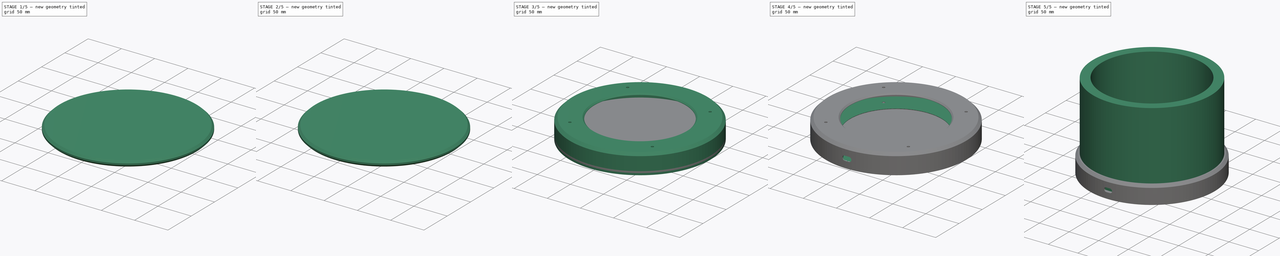
[diagram: build sequence overview — one tinted view per stage of 5, left to right]
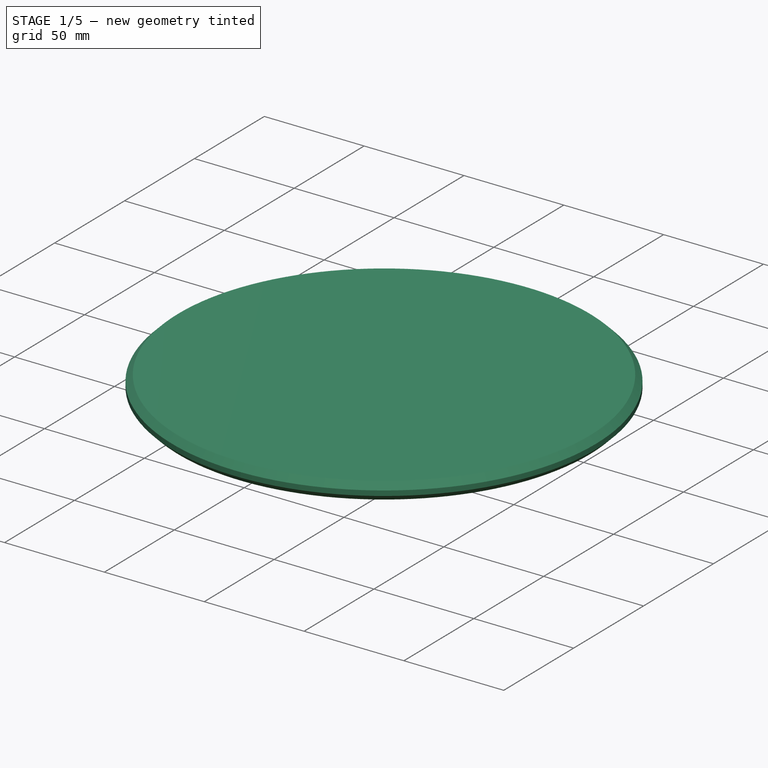
[diagram: stage 1 of 5 — iso view after this stage's code; geometry added in this stage tinted green]
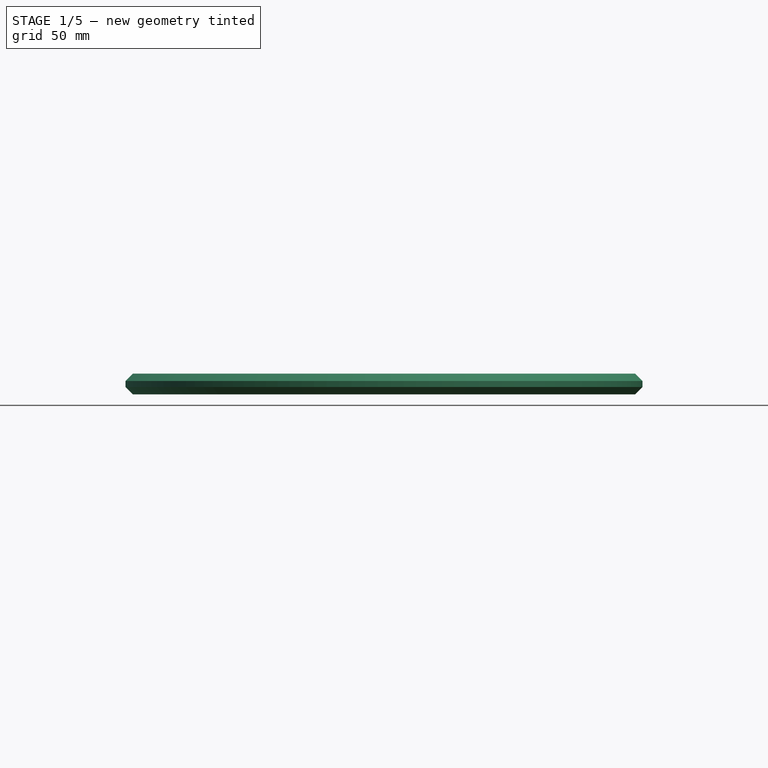
[diagram: stage 1 of 5 — front view after this stage's code; geometry added in this stage tinted green]
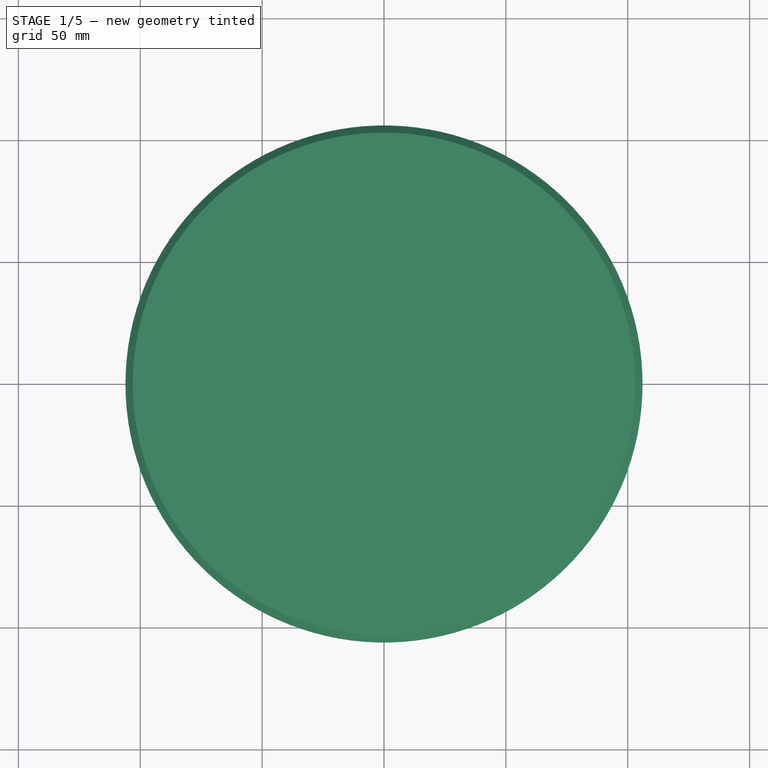
[diagram: stage 1 of 5 — top view after this stage's code; geometry added in this stage tinted green]
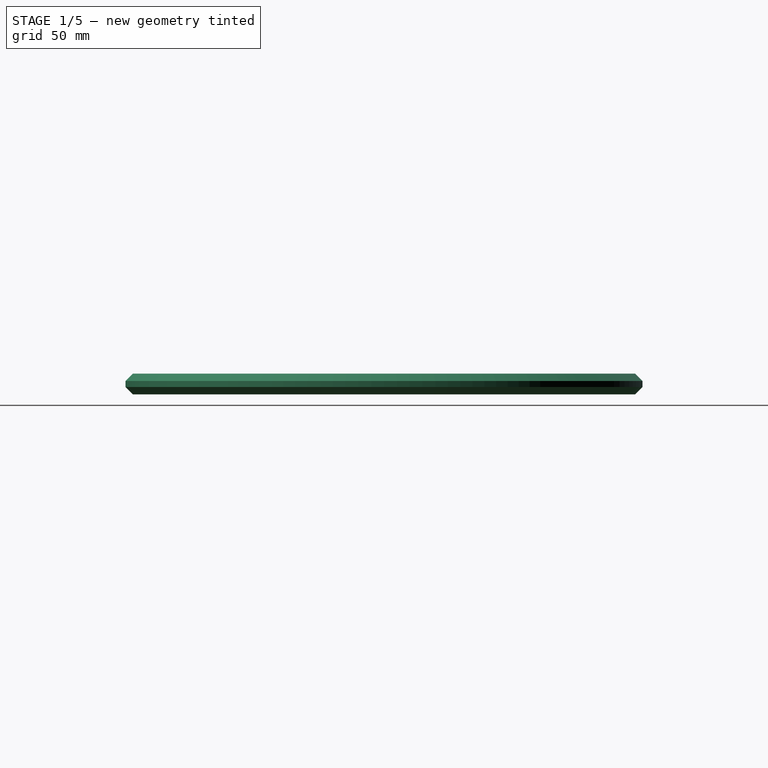
[diagram: stage 1 of 5 — right view after this stage's code; geometry added in this stage tinted green]
FCSTD DOCUMENT  (FreeCAD 0.18R4 (GitTag))
Label: AirPurifier
License: All rights reserved
LicenseURL: http://en.wikipedia.org/wiki/All_rights_reserved
objects: Sketcher::SketchObject×13, PartDesign::Chamfer×10, PartDesign::Pad×7, PartDesign::Pocket×6, PartDesign::Body×5, PartDesign::Fillet×2
note: 56 computed .brp shape members not serialized (recipe doc carries the construction recipe); baked Part::Feature solids carry a one-line shape summary decoded from their .brp

FEATURE [Sketcher::SketchObject] Sketch019
  MapMode = 5
  Support = -> [XY_Plane008]
  sketch-geometry (1):
    g0: Circle CenterX=0 CenterY=0 CenterZ=0 NormalX=0 NormalY=0 NormalZ=1 AngleXU=0 Radius=106.07
  constraints (2):
    c: Coincident(g0,g-1)
    c: Radius(g0) = 106.07
FEATURE [PartDesign::Pad] Pad010
  Length = 8.5
  Length2 = 100
  Profile = -> Sketch019
  Type = 0
FEATURE [Sketcher::SketchObject] Sketch020
  MapMode = 5
  Support = -> [XY_Plane008]
  sketch-geometry (1):
    g0: Circle CenterX=0 CenterY=0 CenterZ=0 NormalX=0 NormalY=0 NormalZ=1 AngleXU=0 Radius=100
  constraints (2):
    c: Coincident(g0,g-1)
    c: Radius(g0) = 100
FEATURE [PartDesign::Pocket] Pocket001
  BaseFeature = -> Pad010
  Length = 7
  Length2 = 100
  Profile = -> Sketch020
  Reversed = true
  Type = 0
FEATURE [PartDesign::Chamfer] Chamfer008
  Base = -> Pocket001 [Edge3]
  BaseFeature = -> Pocket001
  Size = 3
FEATURE [PartDesign::Body] Body  label="Fan_cover"
  Group = -> [Sketch,Pad,Sketch023,Pocket,Chamfer,Chamfer011,Chamfer014,Sketch027,Pocket005]
  Origin = -> Origin
  Placement = pos=(0,0,79.5) rot=(0,0,1;0rad)
  Tip = -> Pocket005
FEATURE [PartDesign::Chamfer] Chamfer015
  Base = -> Chamfer008 [Edge3]
  BaseFeature = -> Chamfer008
  Size = 3
FEATURE [Sketcher::SketchObject] Sketch028
  MapMode = 5
  Support = -> [XY_Plane008]
  sketch-geometry (2):
    g0: Circle CenterX=0 CenterY=0 CenterZ=0 NormalX=0 NormalY=0 NormalZ=1 AngleXU=0 Radius=80
    g1: Circle CenterX=0 CenterY=0 CenterZ=0 NormalX=0 NormalY=0 NormalZ=1 AngleXU=0 Radius=79
  constraints (4):
    c: Coincident(g0,g-1)
    c: Radius(g0) = 80
    c: Coincident(g1,g0)
    c: Radius(g1) = 79
FEATURE [PartDesign::Pad] Pad012
  BaseFeature = -> Chamfer015
  Length = 8
  Length2 = 100
  Profile = -> Sketch028
  Type = 0
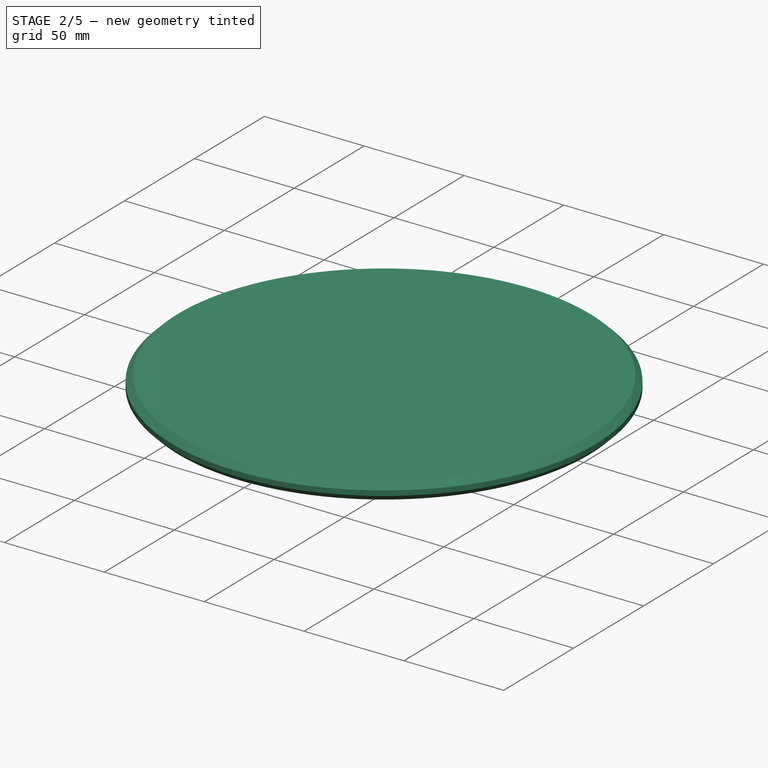
[diagram: stage 2 of 5 — iso view after this stage's code; geometry added in this stage tinted green]
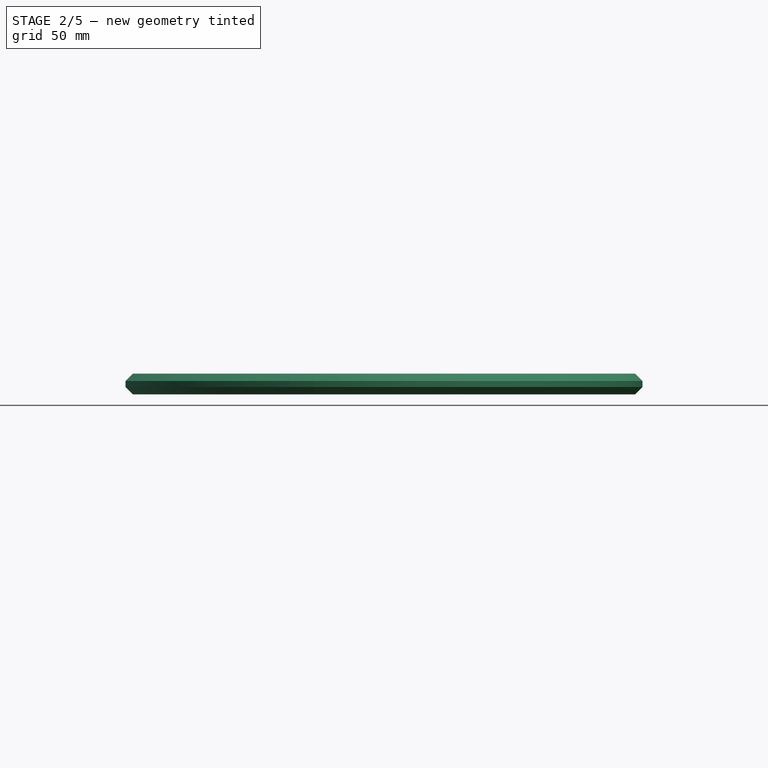
[diagram: stage 2 of 5 — front view after this stage's code; geometry added in this stage tinted green]
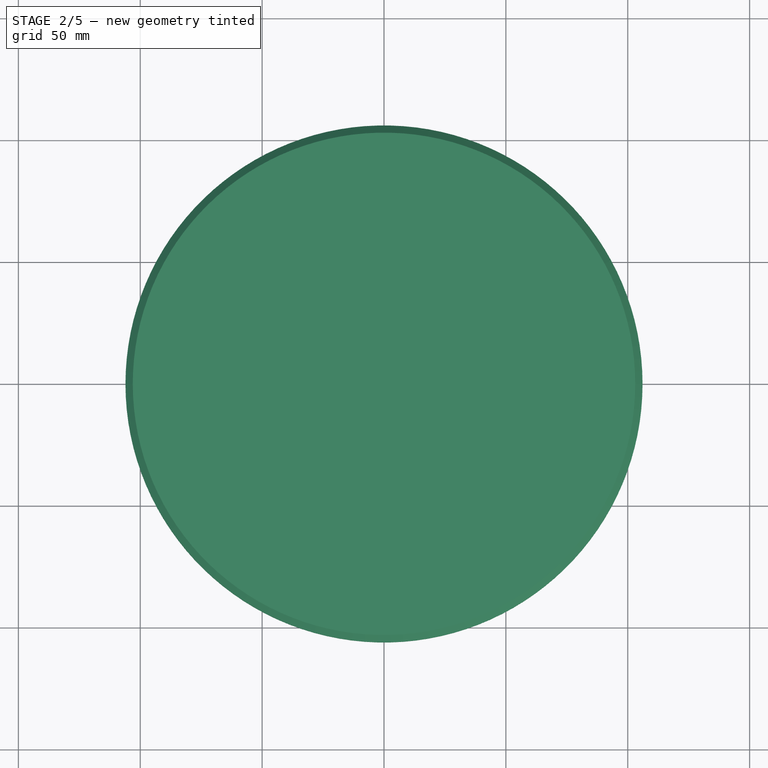
[diagram: stage 2 of 5 — top view after this stage's code; geometry added in this stage tinted green]
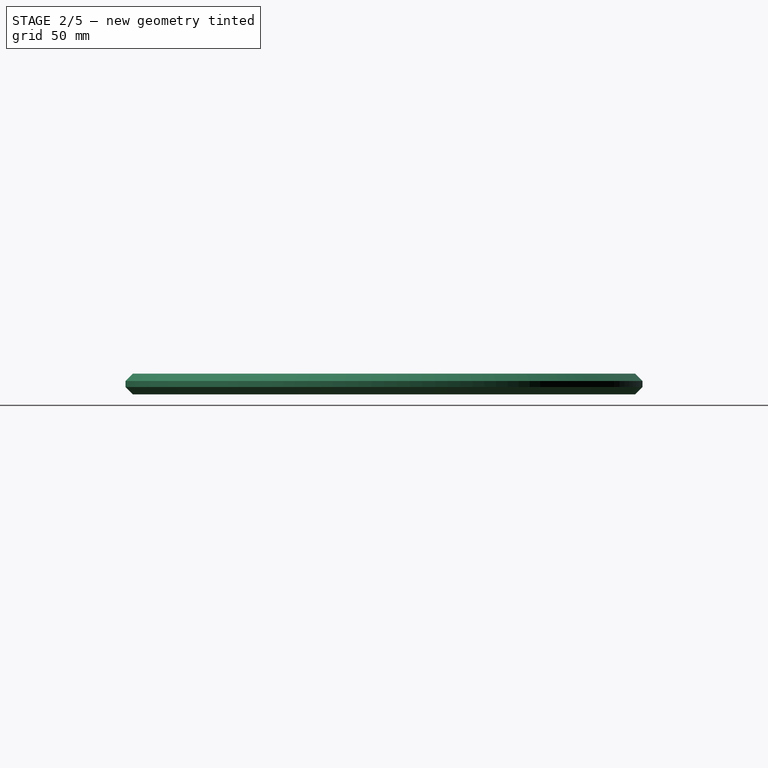
[diagram: stage 2 of 5 — right view after this stage's code; geometry added in this stage tinted green]
FEATURE [Sketcher::SketchObject] Sketch029
  MapMode = 5
  Placement = pos=(0,0,0) rot=(1,0,0;1.5708rad)
  Support = -> [XZ_Plane008]
  sketch-geometry (1):
    g0: Circle CenterX=0 CenterY=4 CenterZ=0 NormalX=0 NormalY=0 NormalZ=1 AngleXU=0 Radius=1
  constraints (3):
    c: PointOnObject(g0,g-2)
    c: Radius(g0) = 1
    c: Distance(g0,g-1) = 4
FEATURE [PartDesign::Pocket] Pocket006
  BaseFeature = -> Pad012
  Length = 175
  Length2 = 100
  Midplane = true
  Profile = -> Sketch029
  Type = 0
FEATURE [Sketcher::SketchObject] Sketch030
  MapMode = 5
  Placement = pos=(0,0,0) rot=(0.57735,0.57735,0.57735;2.0944rad)
  Support = -> [YZ_Plane008]
  sketch-geometry (1):
    g0: Circle CenterX=0 CenterY=4 CenterZ=0 NormalX=0 NormalY=0 NormalZ=1 AngleXU=0 Radius=1
  constraints (3):
    c: PointOnObject(g0,g-2)
    c: Radius(g0) = 1
    c: Distance(g-1,g0) = 4
FEATURE [PartDesign::Pocket] Pocket007
  BaseFeature = -> Pocket006
  Length = 175
  Length2 = 100
  Midplane = true
  Profile = -> Sketch030
  Type = 0
FEATURE [PartDesign::Chamfer] Chamfer016
  Base = -> Pocket007 [Edge34]
  BaseFeature = -> Pocket007
  Size = 1
FEATURE [PartDesign::Chamfer] Chamfer017
  Base = -> Chamfer016 [Edge29]
  BaseFeature = -> Chamfer016
  Size = 0.8
FEATURE [PartDesign::Chamfer] Chamfer018
  Base = -> Chamfer017 [Edge8]
  BaseFeature = -> Chamfer017
  Size = 0.5
FEATURE [PartDesign::Body] Body008  label="Bottom"
  Group = -> [Sketch019,Pad010,Sketch020,Pocket001,Chamfer008,Chamfer015,Sketch028,Pad012,Sketch029,Pocket006,Sketch030,Pocket007,Chamfer016,Chamfer017,Chamfer018]
  Origin = -> Origin008
  Placement = pos=(0,0,-171) rot=(0,1,0;3.14159rad)
  Tip = -> Chamfer018
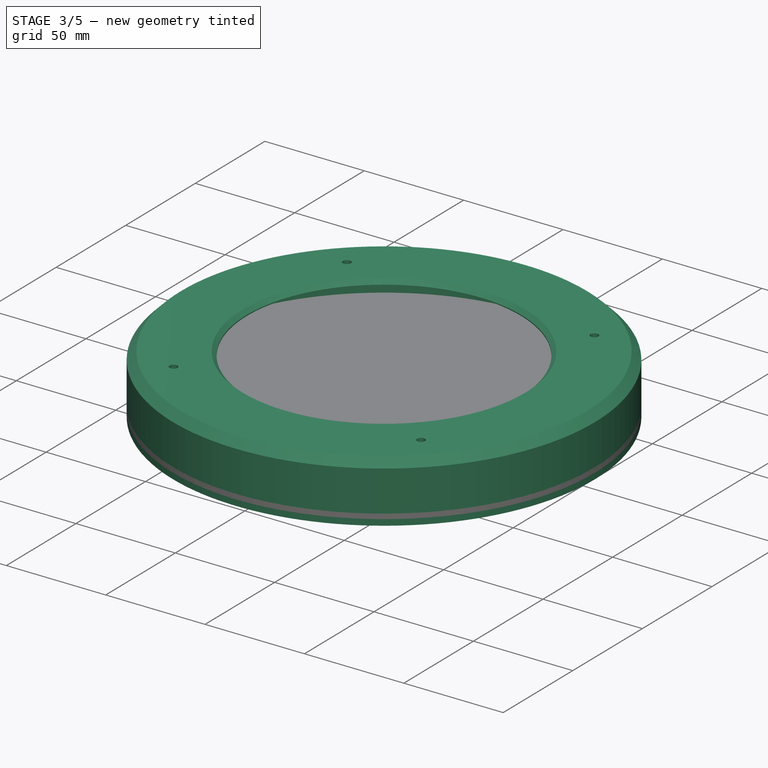
[diagram: stage 3 of 5 — iso view after this stage's code; geometry added in this stage tinted green]
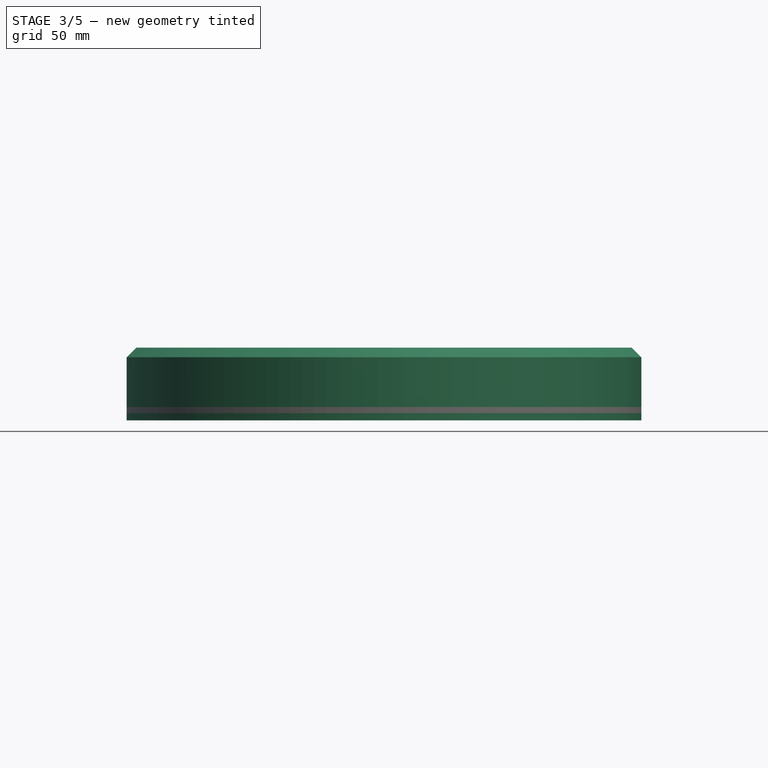
[diagram: stage 3 of 5 — front view after this stage's code; geometry added in this stage tinted green]
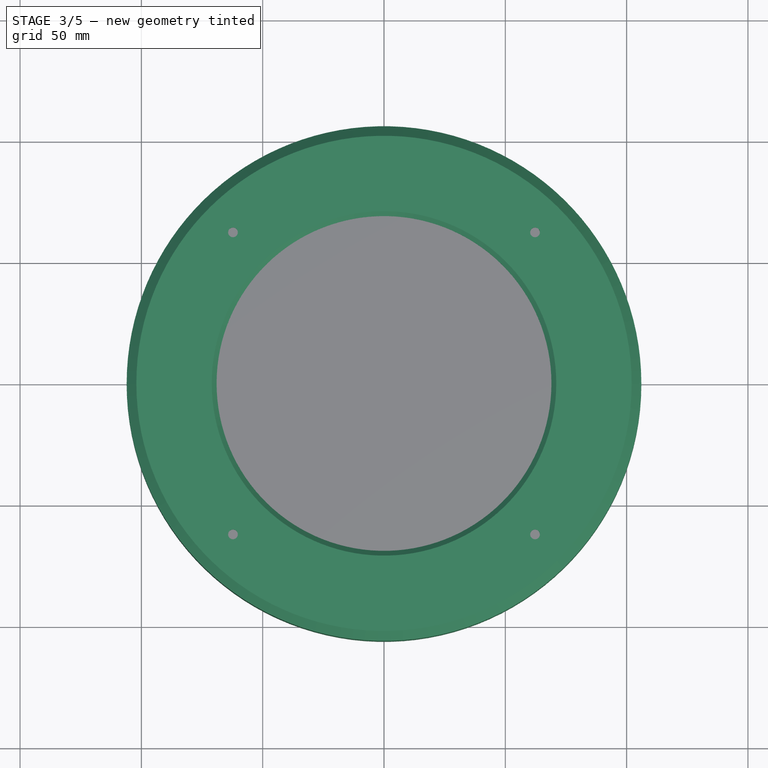
[diagram: stage 3 of 5 — top view after this stage's code; geometry added in this stage tinted green]
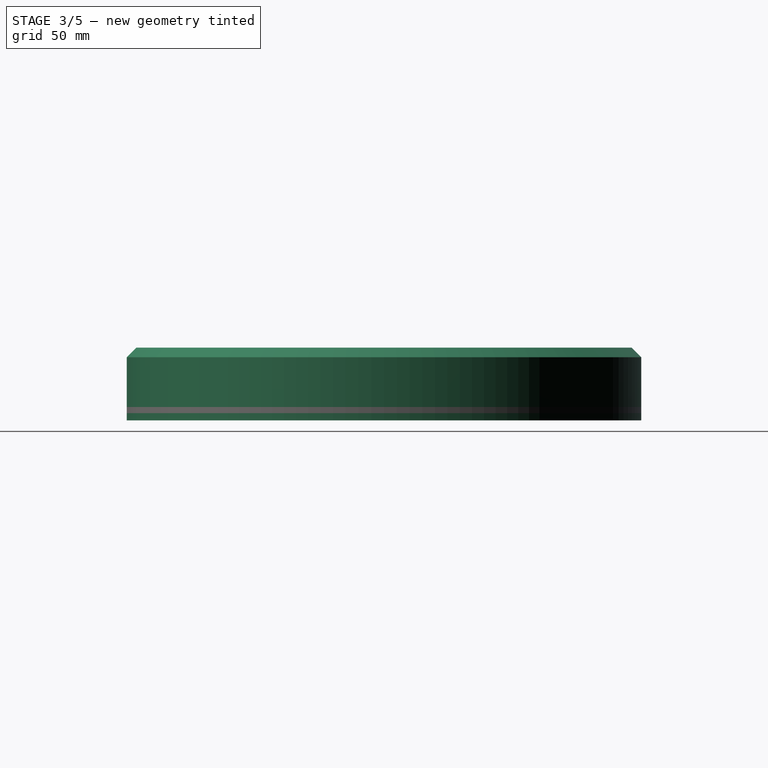
[diagram: stage 3 of 5 — right view after this stage's code; geometry added in this stage tinted green]
FEATURE [Sketcher::SketchObject] Sketch  label="MainSketch"
  MapMode = 5
  Support = -> [XY_Plane]
  sketch-geometry (10):
    g0: Circle CenterX=-62.25 CenterY=62.25 CenterZ=0 NormalX=0 NormalY=0 NormalZ=1 AngleXU=0 Radius=2
    g1: Circle CenterX=62.25 CenterY=62.25 CenterZ=0 NormalX=0 NormalY=0 NormalZ=1 AngleXU=0 Radius=2
    g2: Circle CenterX=62.25 CenterY=-62.25 CenterZ=0 NormalX=0 NormalY=0 NormalZ=1 AngleXU=0 Radius=2
    g3: Circle CenterX=-62.25 CenterY=-62.25 CenterZ=0 NormalX=0 NormalY=0 NormalZ=1 AngleXU=0 Radius=2
    g4: LineSegment [constr] StartX=-75 StartY=75 StartZ=0 EndX=75 EndY=75 EndZ=0
    g5: LineSegment [constr] StartX=75 StartY=75 StartZ=0 EndX=75 EndY=-75 EndZ=0
    g6: LineSegment [constr] StartX=75 StartY=-75 StartZ=0 EndX=-75 EndY=-75 EndZ=0
    g7: LineSegment [constr] StartX=-75 StartY=-75 StartZ=0 EndX=-75 EndY=75 EndZ=0
    g8: Circle CenterX=0 CenterY=0 CenterZ=0 NormalX=0 NormalY=0 NormalZ=1 AngleXU=0 Radius=69
    g9: Circle CenterX=0 CenterY=0 CenterZ=0 NormalX=0 NormalY=0 NormalZ=1 AngleXU=0 Radius=106.066
  constraints (27):
    c: Distance(g0,g-1) = 62.25
    c: Distance(g0,g-2) = 62.25
    c: Distance(g1,g-2) = 62.25
    c: Distance(g1,g-1) = 62.25
    c: Distance(g3,g-1) = 62.25
    c: Distance(g2,g-1) = 62.25
    c: Distance(g3,g-2) = 62.25
    c: Distance(g2,g-2) = 62.25
    c: Equal(g3,g2)
    c: Equal(g1,g2)
    c: Equal(g0,g1)
    c: Radius(g0) = 2
    c: Coincident(g4,g5)
    c: Coincident(g5,g6)
    c: Coincident(g6,g7)
    c: Coincident(g7,g4)
    c: Horizontal(g4)
    c: Horizontal(g6)
    c: Vertical(g5)
    c: Vertical(g7)
    c: Distance(g4) = 150  'width'
    c: Distance(g5) = 150  'height'
    c: Symmetric(g6,g4,g-1)
    c: Coincident(g8,g-1)
    c: Radius(g8) = 69
    c: Coincident(g9,g8)
    c: PointOnObject(g4,g9)
FEATURE [PartDesign::Pad] Pad  label="FanFace"
  Length = 30
  Length2 = 100
  Profile = -> Sketch
  Type = 0
FEATURE [PartDesign::Body] Body006  label="Connector"
  Group = -> [Sketch015,Pad007,Sketch016,Pad008,Fillet,Fillet001]
  Origin = -> Origin006
  Placement = pos=(0,-130,23) rot=(0.57735,-0.57735,0.57735;4.18879rad)
FEATURE [Sketcher::SketchObject] Sketch023
  MapMode = 5
  Support = -> [XY_Plane]
  sketch-geometry (1):
    g0: Circle CenterX=0 CenterY=0 CenterZ=0 NormalX=0 NormalY=0 NormalZ=1 AngleXU=0 Radius=104.07
  constraints (2):
    c: Coincident(g0,g-1)
    c: Radius(g0) = 104.07
FEATURE [PartDesign::Pocket] Pocket
  BaseFeature = -> Pad
  Length = 27.5
  Length2 = 100
  Profile = -> Sketch023
  Reversed = true
  Type = 0
FEATURE [PartDesign::Chamfer] Chamfer
  Base = -> Pocket [Edge3]
  BaseFeature = -> Pocket
  Size = 4
FEATURE [PartDesign::Chamfer] Chamfer011
  Base = -> Chamfer [Edge7]
  BaseFeature = -> Chamfer
  Size = 2
FEATURE [PartDesign::Body] Body009  label="Fan_socket"
  Group = -> [Sketch025,Pad011,Sketch026,Pocket004,Chamfer012,Chamfer013]
  Origin = -> Origin009
  Placement = pos=(0,0,35) rot=(0,0,1;0rad)
  Tip = -> Chamfer013
FEATURE [PartDesign::Chamfer] Chamfer014
  Base = -> Chamfer011 [Edge23]
  BaseFeature = -> Chamfer011
  Size = 2
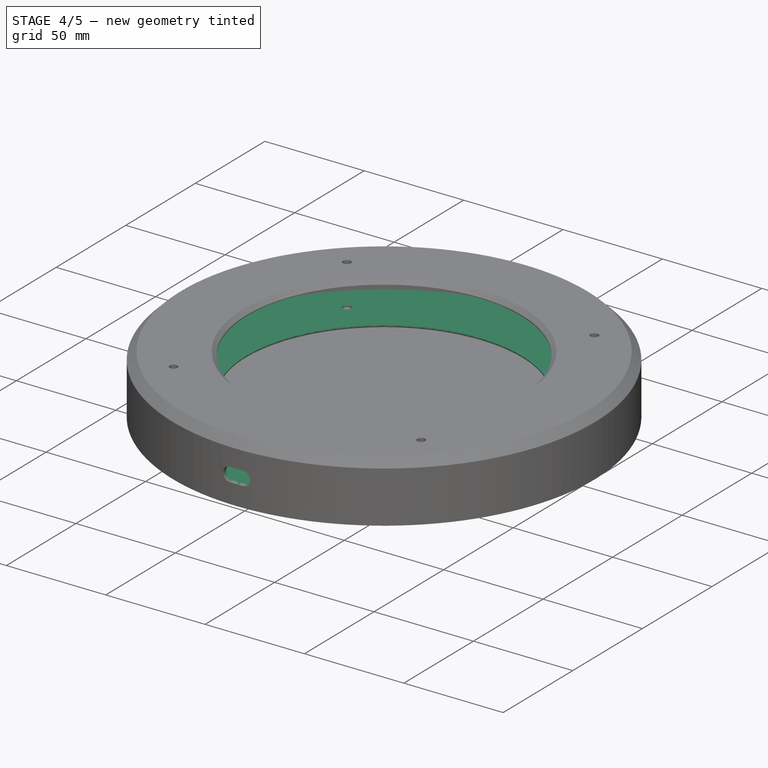
[diagram: stage 4 of 5 — iso view after this stage's code; geometry added in this stage tinted green]
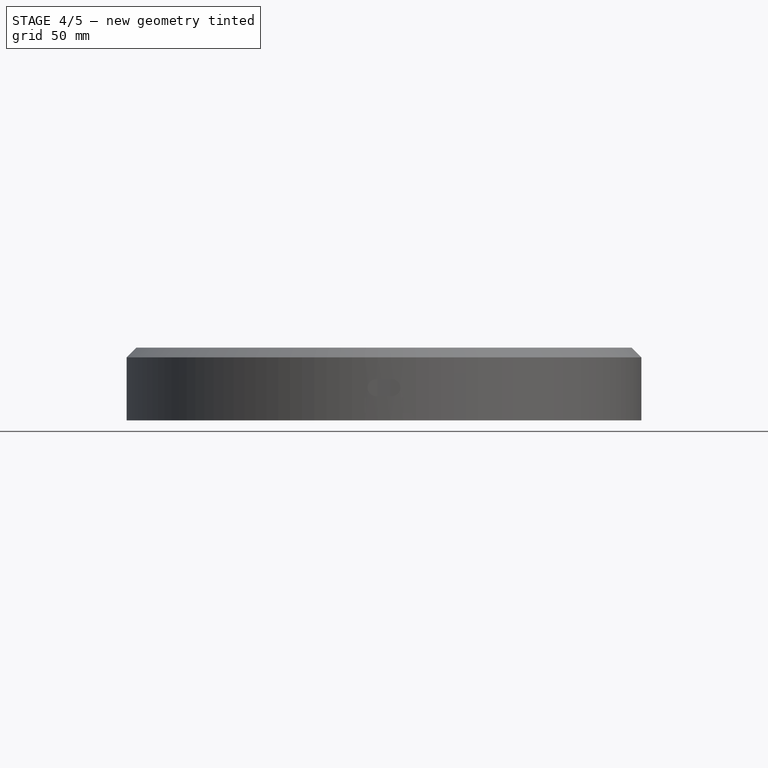
[diagram: stage 4 of 5 — front view after this stage's code; geometry added in this stage tinted green]
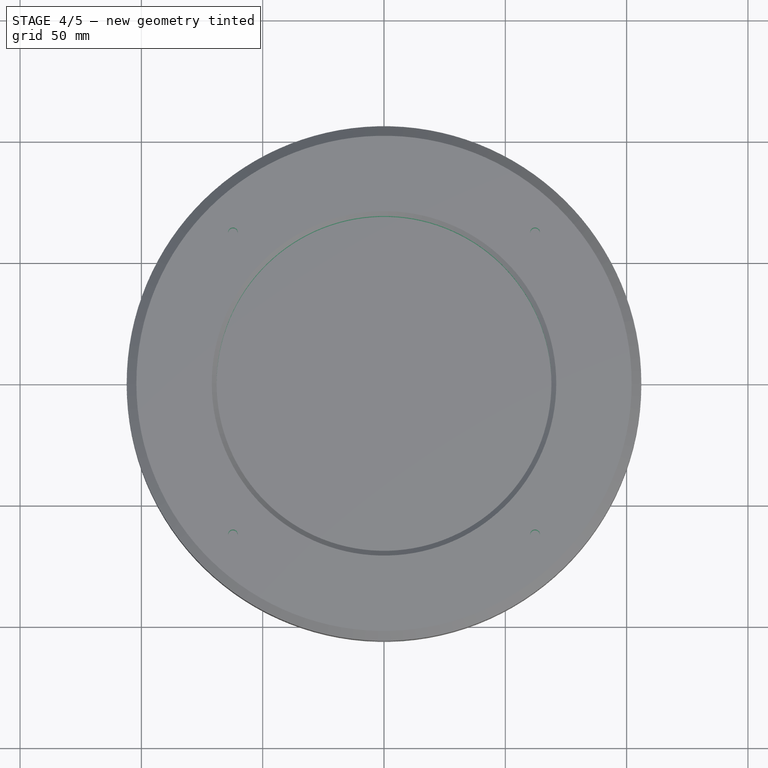
[diagram: stage 4 of 5 — top view after this stage's code; geometry added in this stage tinted green]
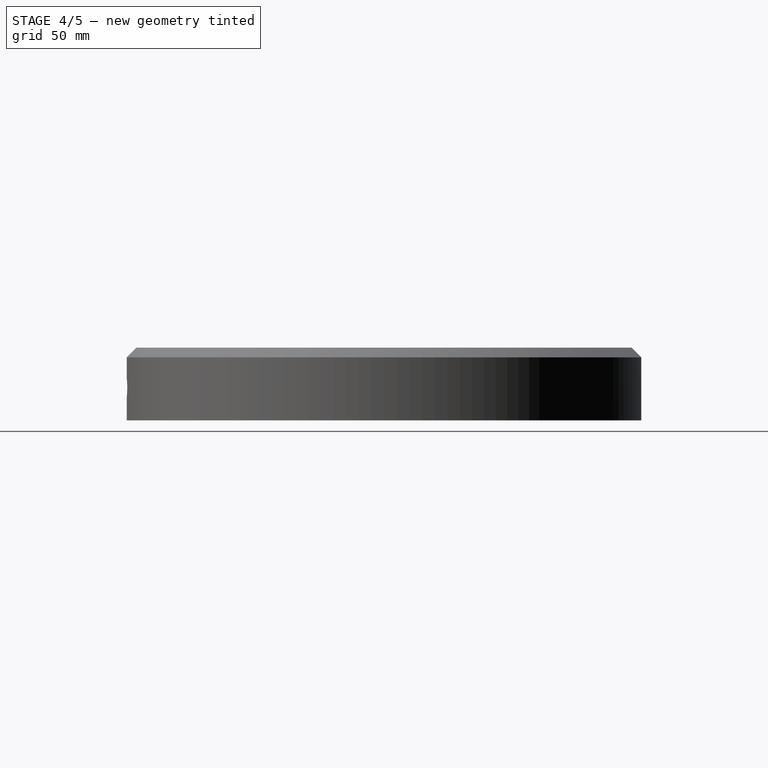
[diagram: stage 4 of 5 — right view after this stage's code; geometry added in this stage tinted green]
FEATURE [Sketcher::SketchObject] Sketch025  label="MainSketch001"
  MapMode = 5
  sketch-geometry (10):
    g0: Circle CenterX=-62.25 CenterY=62.25 CenterZ=0 NormalX=0 NormalY=0 NormalZ=1 AngleXU=0 Radius=2
    g1: Circle CenterX=62.25 CenterY=62.25 CenterZ=0 NormalX=0 NormalY=0 NormalZ=1 AngleXU=0 Radius=2
    g2: Circle CenterX=62.25 CenterY=-62.25 CenterZ=0 NormalX=0 NormalY=0 NormalZ=1 AngleXU=0 Radius=2
    g3: Circle CenterX=-62.25 CenterY=-62.25 CenterZ=0 NormalX=0 NormalY=0 NormalZ=1 AngleXU=0 Radius=2
    g4: LineSegment [constr] StartX=-75 StartY=75 StartZ=0 EndX=75 EndY=75 EndZ=0
    g5: LineSegment [constr] StartX=75 StartY=75 StartZ=0 EndX=75 EndY=-75 EndZ=0
    g6: LineSegment [constr] StartX=75 StartY=-75 StartZ=0 EndX=-75 EndY=-75 EndZ=0
    g7: LineSegment [constr] StartX=-75 StartY=-75 StartZ=0 EndX=-75 EndY=75 EndZ=0
    g8: Circle CenterX=0 CenterY=0 CenterZ=0 NormalX=0 NormalY=0 NormalZ=1 AngleXU=0 Radius=69
    g9: Circle CenterX=0 CenterY=0 CenterZ=0 NormalX=0 NormalY=0 NormalZ=1 AngleXU=0 Radius=106.066
  constraints (27):
    c: Distance(g0,g-1) = 62.25
    c: Distance(g0,g-2) = 62.25
    c: Distance(g1,g-2) = 62.25
    c: Distance(g1,g-1) = 62.25
    c: Distance(g3,g-1) = 62.25
    c: Distance(g2,g-1) = 62.25
    c: Distance(g3,g-2) = 62.25
    c: Distance(g2,g-2) = 62.25
    c: Equal(g3,g2)
    c: Equal(g1,g2)
    c: Equal(g0,g1)
    c: Radius(g0) = 2
    c: Coincident(g4,g5)
    c: Coincident(g5,g6)
    c: Coincident(g6,g7)
    c: Coincident(g7,g4)
    c: Horizontal(g4)
    c: Horizontal(g6)
    c: Vertical(g5)
    c: Vertical(g7)
    c: Distance(g4) = 150  'width'
    c: Distance(g5) = 150  'height'
    c: Symmetric(g6,g4,g-1)
    c: Coincident(g8,g-1)
    c: Radius(g8) = 69
    c: Coincident(g9,g8)
    c: PointOnObject(g4,g9)
FEATURE [PartDesign::Pad] Pad011
  Length = 9.5
  Length2 = 100
  Profile = -> Sketch025
  Type = 0
FEATURE [Sketcher::SketchObject] Sketch026
  MapMode = 5
  Support = -> [XY_Plane009]
  sketch-geometry (2):
    g0: Circle CenterX=0 CenterY=0 CenterZ=0 NormalX=0 NormalY=0 NormalZ=1 AngleXU=0 Radius=100
    g1: Circle CenterX=0 CenterY=0 CenterZ=0 NormalX=0 NormalY=0 NormalZ=1 AngleXU=0 Radius=82
  constraints (4):
    c: Coincident(g0,g-1)
    c: Radius(g0) = 100
    c: Coincident(g1,g0)
    c: Radius(g1) = 82
FEATURE [PartDesign::Pocket] Pocket004
  BaseFeature = -> Pad011
  Length = 7.5
  Length2 = 100
  Profile = -> Sketch026
  Reversed = true
  Type = 0
FEATURE [PartDesign::Chamfer] Chamfer012
  Base = -> Pocket004 [Edge13]
  BaseFeature = -> Pocket004
  Size = 9
FEATURE [PartDesign::Chamfer] Chamfer013
  Base = -> Chamfer012 [Edge13]
  BaseFeature = -> Chamfer012
  Size = 4
FEATURE [Sketcher::SketchObject] Sketch027
  MapMode = 5
  Placement = pos=(0,0,0) rot=(1,0,0;1.5708rad)
  Support = -> [XZ_Plane]
  sketch-geometry (4):
    g0: ArcOfCircle CenterX=-3.25 CenterY=13.5 CenterZ=0 NormalX=0 NormalY=0 NormalZ=1 AngleXU=0 Radius=3.5 StartAngle=1.5708 EndAngle=4.71239
    g1: ArcOfCircle CenterX=3.25 CenterY=13.5 CenterZ=0 NormalX=0 NormalY=0 NormalZ=1 AngleXU=0 Radius=3.5 StartAngle=4.71239 EndAngle=7.85398
    g2: LineSegment StartX=-3.25 StartY=17 StartZ=0 EndX=3.25 EndY=17 EndZ=0
    g3: LineSegment StartX=-3.25 StartY=10 StartZ=0 EndX=3.25 EndY=10 EndZ=0
  constraints (13):
    c: Coincident(g2,g0)
    c: Coincident(g2,g1)
    c: Horizontal(g2)
    c: Coincident(g3,g0)
    c: Coincident(g3,g1)
    c: Horizontal(g3)
    c: Equal(g2,g3)
    c: Equal(g0,g1)
    c: Angle(g0) = 3.14159
    c: Symmetric(g0,g1,g-2)
    c: Distance(g2) = 6.5
    c: Radius(g0) = 3.5
    c: Distance(g-1,g3) = 10
FEATURE [PartDesign::Pocket] Pocket005
  BaseFeature = -> Chamfer014
  Length = 109
  Length2 = 100
  Profile = -> Sketch027
  Reversed = true
  Type = 0
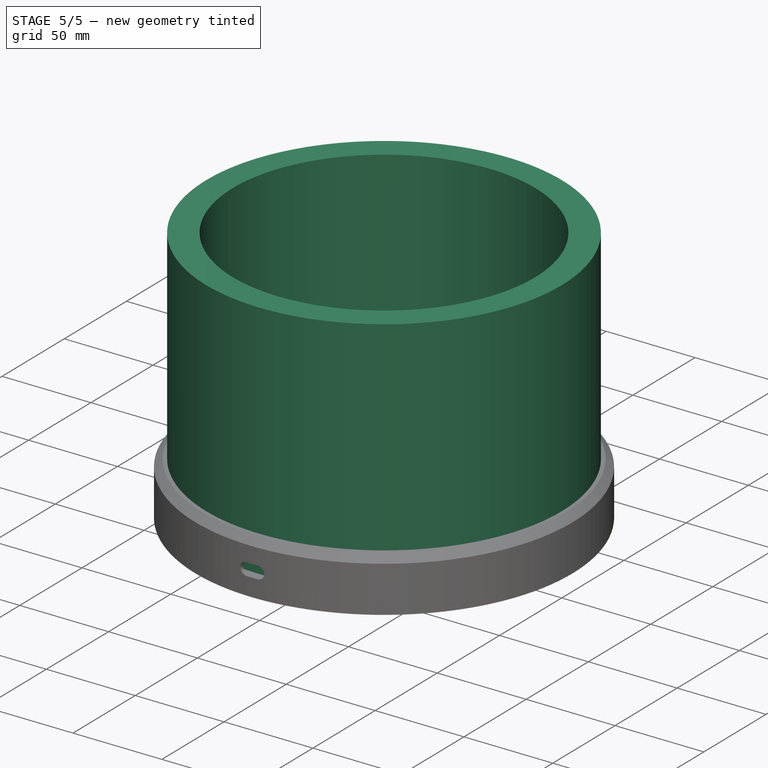
[diagram: stage 5 of 5 — iso view after this stage's code; geometry added in this stage tinted green]
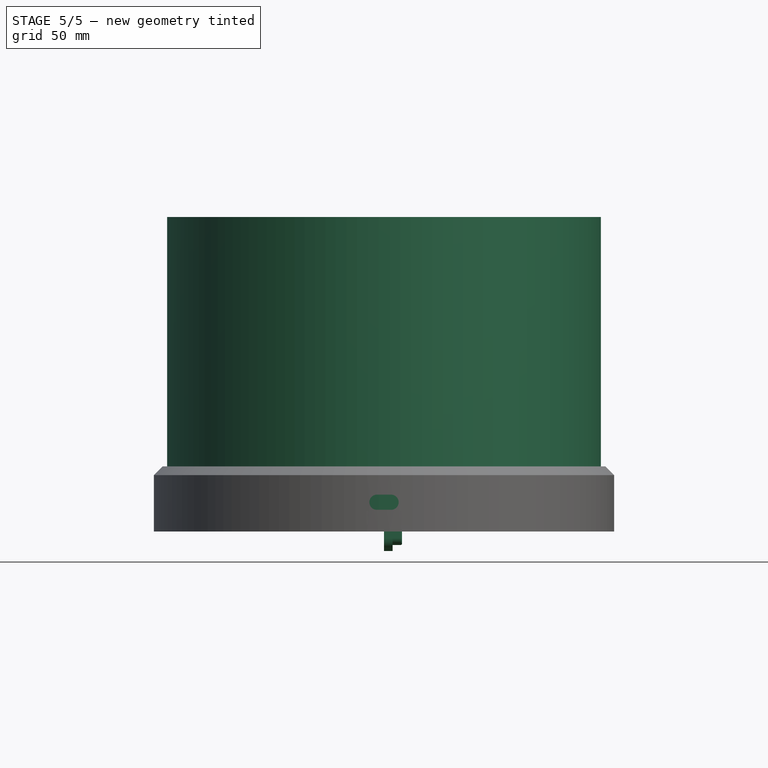
[diagram: stage 5 of 5 — front view after this stage's code; geometry added in this stage tinted green]
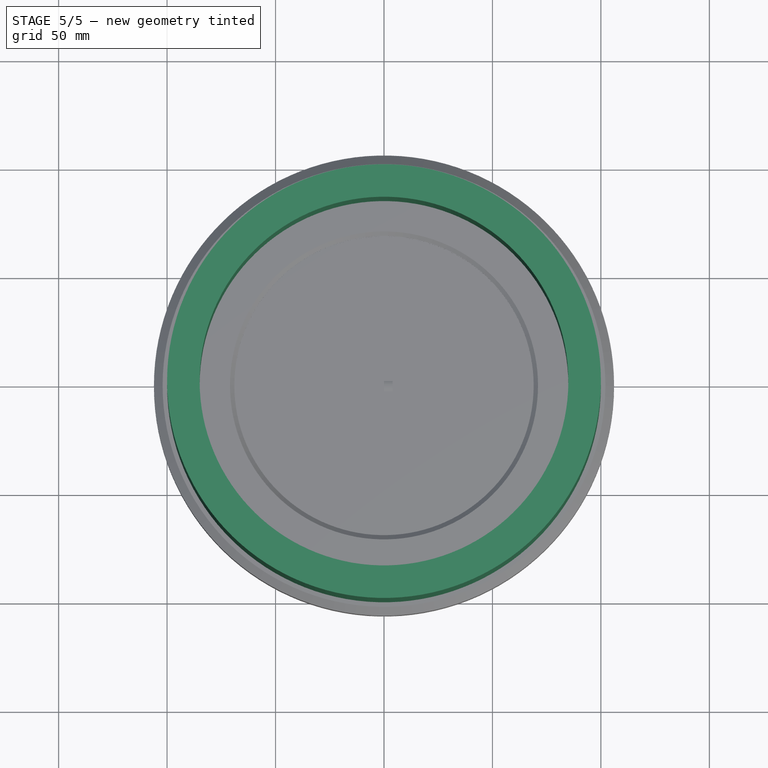
[diagram: stage 5 of 5 — top view after this stage's code; geometry added in this stage tinted green]
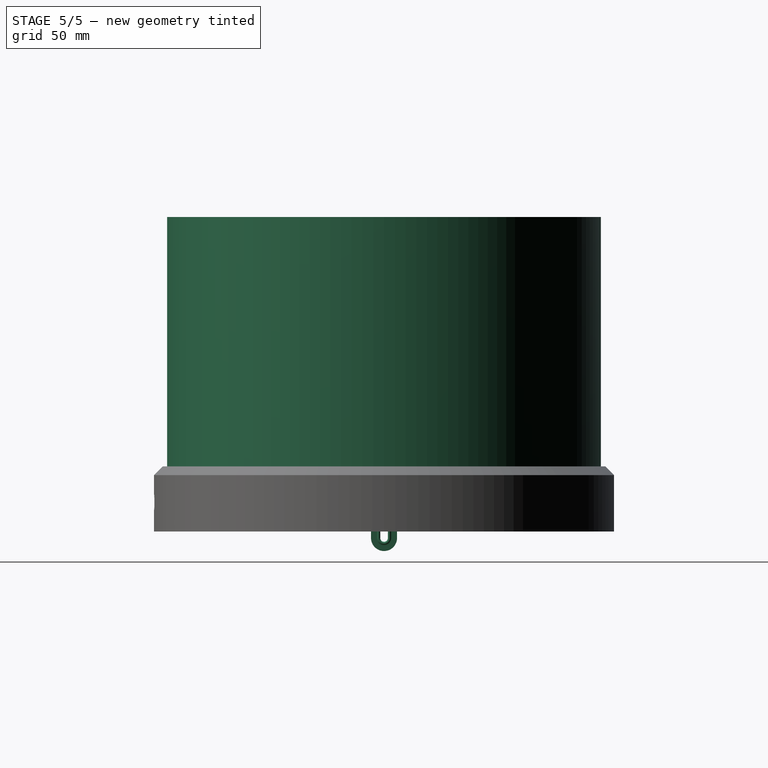
[diagram: stage 5 of 5 — right view after this stage's code; geometry added in this stage tinted green]
FEATURE [Sketcher::SketchObject] Sketch015
  MapMode = 5
  Placement = pos=(0,0,0) rot=(0.57735,0.57735,0.57735;2.0944rad)
  Support = -> [YZ_Plane006]
  sketch-geometry (8):
    g0: ArcOfCircle CenterX=0 CenterY=3 CenterZ=0 NormalX=0 NormalY=0 NormalZ=1 AngleXU=0 Radius=3.25 StartAngle=1e-16 EndAngle=3.14159
    g1: ArcOfCircle CenterX=0 CenterY=-3 CenterZ=0 NormalX=0 NormalY=0 NormalZ=1 AngleXU=0 Radius=3.25 StartAngle=3.14159 EndAngle=6.28319
    g2: LineSegment StartX=-3.25 StartY=3 StartZ=0 EndX=-3.25 EndY=-3 EndZ=0
    g3: LineSegment StartX=3.25 StartY=3 StartZ=0 EndX=3.25 EndY=-3 EndZ=0
    g4: ArcOfCircle CenterX=0 CenterY=3 CenterZ=0 NormalX=0 NormalY=0 NormalZ=1 AngleXU=0 Radius=1.75 StartAngle=3e-16 EndAngle=3.14159
    g5: ArcOfCircle CenterX=0 CenterY=-3 CenterZ=0 NormalX=0 NormalY=0 NormalZ=1 AngleXU=0 Radius=1.75 StartAngle=3.14159 EndAngle=6.28319
    g6: LineSegment StartX=-1.75 StartY=3 StartZ=0 EndX=-1.75 EndY=-3 EndZ=0
    g7: LineSegment StartX=1.75 StartY=3 StartZ=0 EndX=1.75 EndY=-3 EndZ=0
  constraints (25):
    c: Coincident(g2,g0)
    c: Coincident(g2,g1)
    c: Coincident(g3,g0)
    c: Coincident(g3,g1)
    c: Vertical(g3)
    c: Vertical(g2)
    c: Angle(g0) = 3.14159
    c: Angle(g1) = 3.14159
    c: Radius(g0) = 3.25
    c: Distance(g2) = 6
    c: Equal(g2,g3)
    c: Horizontal(g1,g1)
    c: Coincident(g4,g0)
    c: Coincident(g5,g1)
    c: Coincident(g6,g4)
    c: Coincident(g6,g5)
    c: Vertical(g6)
    c: Coincident(g7,g4)
    c: Coincident(g7,g5)
    c: Equal(g6,g2)
    c: Equal(g7,g3)
    c: Radius(g4) = 1.75
    c: Horizontal(g5,g5)
    c: Angle(g4) = 3.14159
    c: Symmetric(g0,g1,g-1)
FEATURE [PartDesign::Pad] Pad007
  Length = 8.3
  Length2 = 100
  Placement = pos=(0,0,0) rot=(0.57735,0.57735,0.57735;2.0944rad)
  Profile = -> Sketch015
  Type = 0
FEATURE [Sketcher::SketchObject] Sketch016
  MapMode = 5
  Placement = pos=(0,0,0) rot=(0.57735,0.57735,0.57735;2.0944rad)
  Support = -> [YZ_Plane006]
  sketch-geometry (8):
    g0: LineSegment StartX=-3.25 StartY=3 StartZ=0 EndX=-3.25 EndY=-3 EndZ=0
    g1: LineSegment StartX=3.25 StartY=-3 StartZ=0 EndX=3.25 EndY=3 EndZ=0
    g2: LineSegment StartX=-6 StartY=3 StartZ=0 EndX=-6 EndY=-3 EndZ=0
    g3: LineSegment StartX=6 StartY=3 StartZ=0 EndX=6 EndY=-3 EndZ=0
    g4: ArcOfCircle CenterX=2e-16 CenterY=3 CenterZ=0 NormalX=0 NormalY=0 NormalZ=1 AngleXU=0 Radius=3.25 StartAngle=0 EndAngle=3.14159
    g5: ArcOfCircle CenterX=-2e-16 CenterY=-3 CenterZ=0 NormalX=0 NormalY=0 NormalZ=1 AngleXU=0 Radius=3.25 StartAngle=3.14159 EndAngle=6.28319
    g6: ArcOfCircle CenterX=-2e-16 CenterY=-3 CenterZ=0 NormalX=0 NormalY=0 NormalZ=1 AngleXU=0 Radius=6 StartAngle=3.14159 EndAngle=6.28319
    g7: ArcOfCircle CenterX=2e-16 CenterY=3 CenterZ=0 NormalX=0 NormalY=0 NormalZ=1 AngleXU=0 Radius=6 StartAngle=0 EndAngle=3.14159
  constraints (25):
    c: Vertical(g0)
    c: Vertical(g1)
    c: Vertical(g2)
    c: Coincident(g4,g1)
    c: Coincident(g4,g0)
    c: Coincident(g5,g1)
    c: Coincident(g5,g0)
    c: Coincident(g6,g3)
    c: Coincident(g6,g2)
    c: Coincident(g7,g4)
    c: Coincident(g7,g3)
    c: Coincident(g7,g2)
    c: Distance(g0) = 6
    c: Equal(g0,g1)
    c: Equal(g1,g3)
    c: Equal(g3,g2)
    c: Horizontal(g2,g0)
    c: Horizontal(g1,g3)
    c: Angle(g4) = 3.14159
    c: Coincident(g6,g5)
    c: Radius(g4) = 3.25
    c: Radius(g7) = 6
    c: Angle(g5) = 3.14159
    c: Horizontal(g1,g0)
    c: Symmetric(g5,g4,g-1)
FEATURE [PartDesign::Pad] Pad008
  BaseFeature = -> Pad007
  Length = 4
  Length2 = 100
  Placement = pos=(0,0,0) rot=(0.57735,0.57735,0.57735;2.0944rad)
  Profile = -> Sketch016
  Type = 0
FEATURE [Sketcher::SketchObject] Sketch018
  MapMode = 5
  Support = -> [XY_Plane007]
  sketch-geometry (2):
    g0: Circle CenterX=0 CenterY=0 CenterZ=0 NormalX=0 NormalY=0 NormalZ=1 AngleXU=0 Radius=85
    g1: Circle CenterX=0 CenterY=0 CenterZ=0 NormalX=0 NormalY=0 NormalZ=1 AngleXU=0 Radius=100
  constraints (4):
    c: Coincident(g0,g-1)
    c: Coincident(g1,g0)
    c: Radius(g0) = 85
    c: Radius(g1) = 100
FEATURE [PartDesign::Pad] Pad009
  Length = 145
  Length2 = 100
  Profile = -> Sketch018
  Type = 0
FEATURE [PartDesign::Body] Body007  label="Filter"
  Group = -> [Sketch018,Pad009]
  Origin = -> Origin007
  Placement = pos=(0,0,-138) rot=(0,0,1;0rad)
FEATURE [PartDesign::Fillet] Fillet
  Base = -> Pad008 [Edge14,Edge13,Edge3,Edge15]
  BaseFeature = -> Pad008
  Placement = pos=(0,0,0) rot=(0.57735,0.57735,0.57735;2.0944rad)
  Radius = 0.7
FEATURE [PartDesign::Fillet] Fillet001
  Base = -> Fillet [Edge26,Edge27,Edge28,Edge25]
  BaseFeature = -> Fillet
  Placement = pos=(0,0,0) rot=(0.57735,0.57735,0.57735;2.0944rad)
  Radius = 0.7
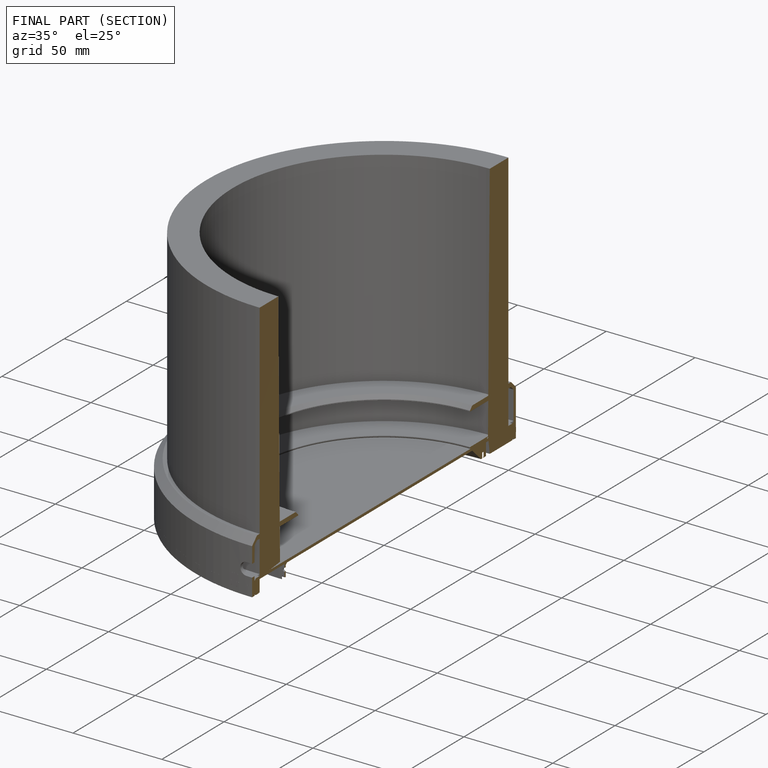
[diagram: finished part — half-section view (interior)]
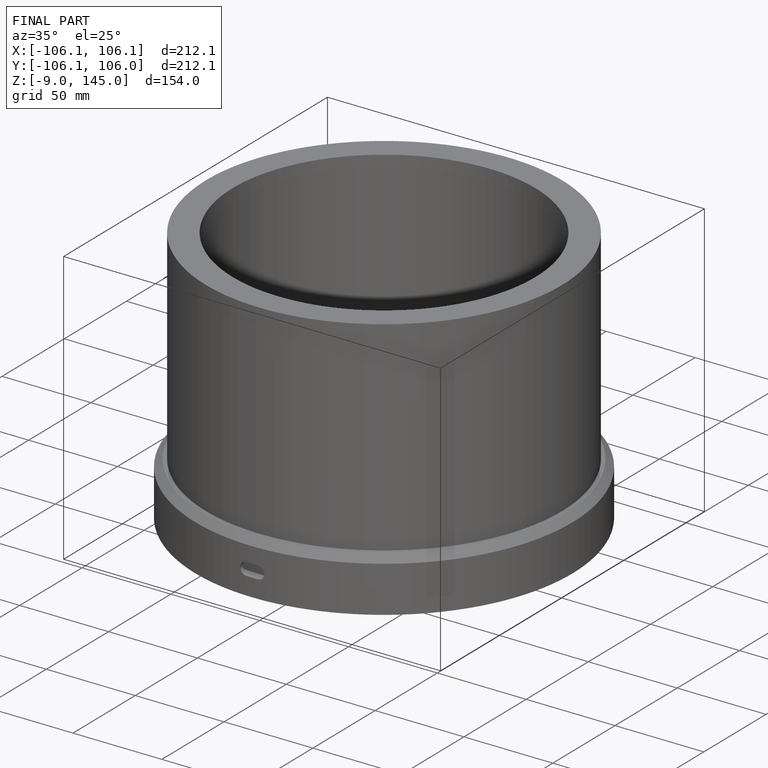
[diagram: finished part — iso view with bounding-box wireframe]
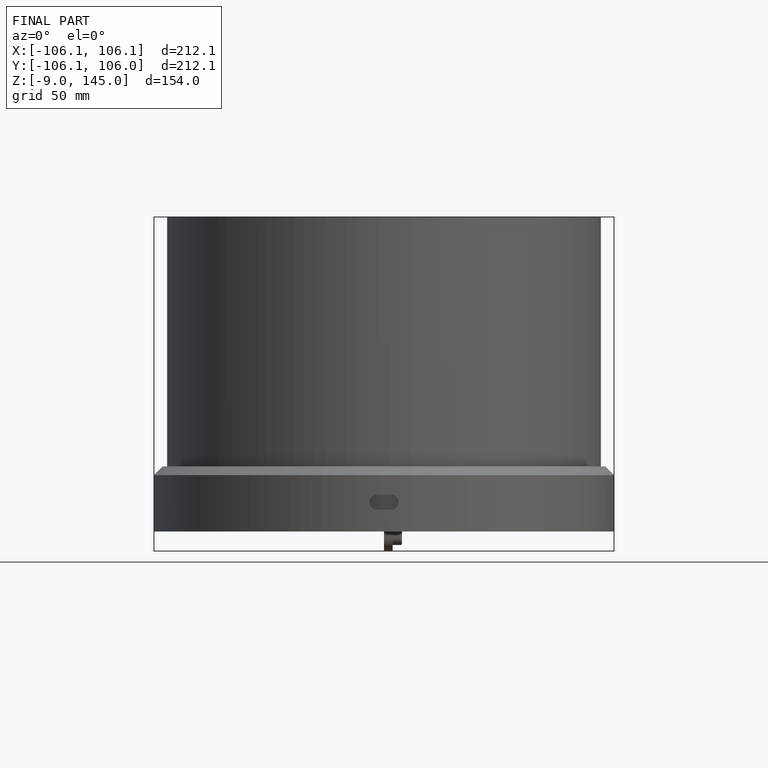
[diagram: finished part — front view with bounding-box wireframe]
